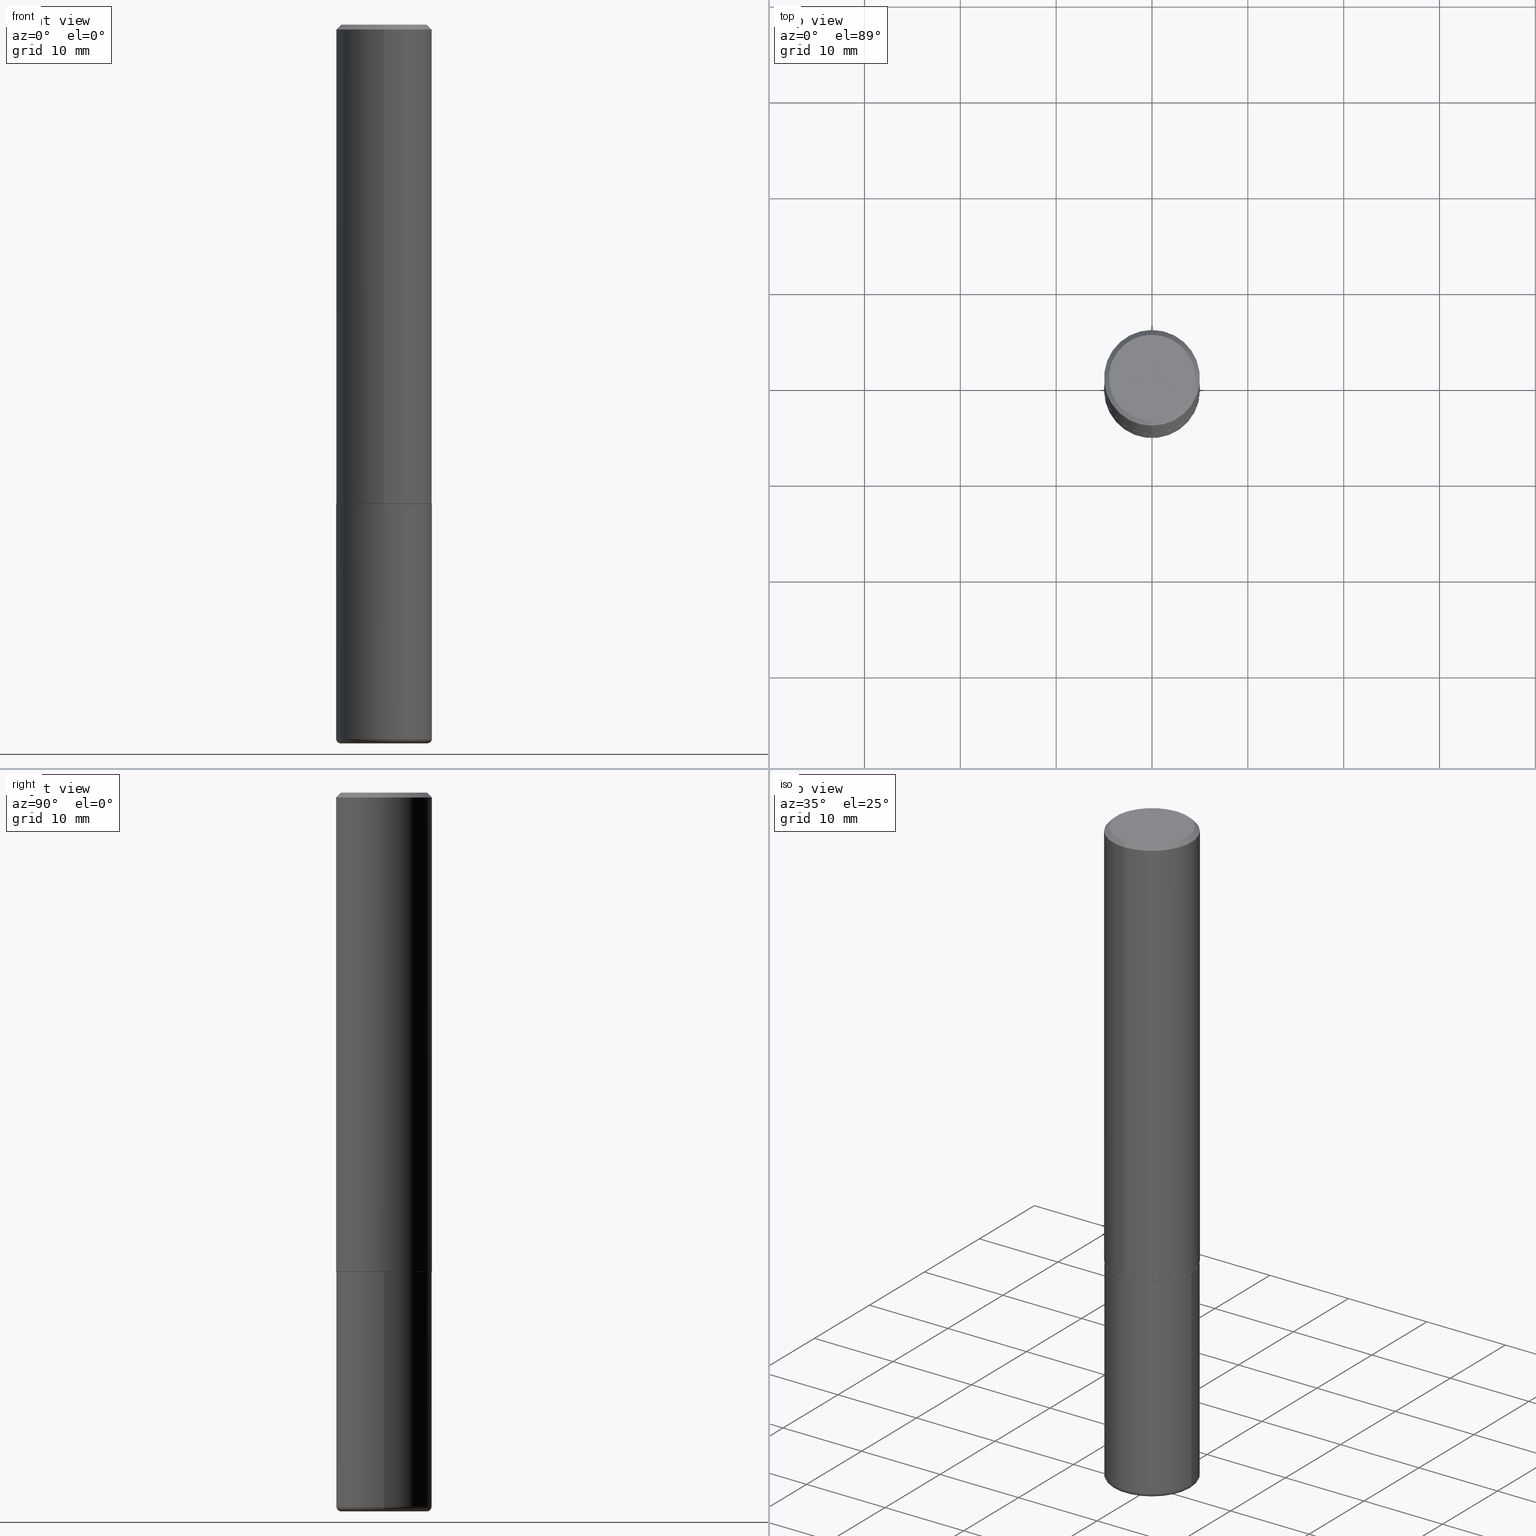
[diagram: canonical four-view strip — front | top / right | iso, engineering-drawing reading convention]
A machine part, canonical four-view strip (front | top / right | iso — engineering-drawing reading convention). The complete STEP part file that produces these views, byte-faithful:
ISO-10303-21;
HEADER;
FILE_DESCRIPTION (( 'STEP AP203' ),
    '1' );
FILE_NAME ('74401.STEP',
    '2024-03-06T15:11:22',
    ( '' ),
    ( '' ),
    'SwSTEP 2.0',
    'SolidWorks 2023',
    '' );
FILE_SCHEMA (( 'CONFIG_CONTROL_DESIGN' ));
ENDSEC;

DATA;
#1 = CALENDAR_DATE ( 2024, 6, 3 ) ;
#2 = EDGE_CURVE ( 'NONE', #213, #202, #205, .T. ) ;
#3 = DATE_AND_TIME ( #1, #21 ) ;
#4 = DATE_TIME_ROLE ( 'creation_date' ) ;
#5 = ORIENTED_EDGE ( 'NONE', *, *, #83, .F. ) ;
#6 = LOCAL_TIME ( 10, 11, 22.00000000000000000, #161 ) ;
#7 = PERSON_AND_ORGANIZATION ( #372, #323 ) ;
#8 = ORIENTED_EDGE ( 'NONE', *, *, #48, .T. ) ;
#9 = ORIENTED_EDGE ( 'NONE', *, *, #78, .T. ) ;
#10 = EDGE_LOOP ( 'NONE', ( #19, #9, #71, #87 ) ) ;
#11 = CARTESIAN_POINT ( 'NONE',  ( -1.281884050883609900E-15, -0.1768499999999998407, 8.395324101811677409E-16 ) ) ;
#12 = AXIS2_PLACEMENT_3D ( 'NONE', #308, #144, #398 ) ;
#13 = DIRECTION ( 'NONE',  ( 2.438088387897960049E-29, -3.491481338843145188E-15, -1.000000000000000000 ) ) ;
#14 = ORIENTED_EDGE ( 'NONE', *, *, #367, .T. ) ;
#15 = EDGE_CURVE ( 'NONE', #145, #41, #240, .T. ) ;
#16 = EDGE_CURVE ( 'NONE', #73, #336, #42, .T. ) ;
#17 = CARTESIAN_POINT ( 'NONE',  ( 4.813511714092851266E-29, -6.873544717340677315E-15, -1.968499999999999694 ) ) ;
#18 = DIRECTION ( 'NONE',  ( -6.982962677686265922E-15, -1.000000000000000000, 4.163344669033670112E-15 ) ) ;
#19 = ORIENTED_EDGE ( 'NONE', *, *, #272, .T. ) ;
#20 = VECTOR ( 'NONE', #337, 39.37007874015748143 ) ;
#21 = LOCAL_TIME ( 10, 11, 22.00000000000000000, #302 ) ;
#22 = DIRECTION ( 'NONE',  ( 1.000000000000000000, -6.982962677686269866E-15, 0.000000000000000000 ) ) ;
#23 = ADVANCED_FACE ( 'NONE', ( #51 ), #267, .T. ) ;
#24 = DIRECTION ( 'NONE',  ( -6.982962677686265922E-15, -1.000000000000000000, 4.163344669033670112E-15 ) ) ;
#25 = DIRECTION ( 'NONE',  ( -2.445468806185136597E-29, 3.491481338843145583E-15, 1.000000000000000000 ) ) ;
#26 = CIRCLE ( 'NONE', #191, 0.1968499999999999694 ) ;
#27 = CC_DESIGN_APPROVAL ( #108, ( #246 ) ) ;
#28 = FACE_OUTER_BOUND ( 'NONE', #281, .T. ) ;
#29 = ADVANCED_FACE ( 'NONE', ( #181 ), #282, .F. ) ;
#30 = CARTESIAN_POINT ( 'NONE',  ( 4.811066445251554069E-29, -6.870052949640732965E-15, -1.967499999999999805 ) ) ;
#31 = ORIENTED_EDGE ( 'NONE', *, *, #250, .T. ) ;
#32 = PLANE ( 'NONE',  #341 ) ;
#33 = CALENDAR_DATE ( 2024, 6, 3 ) ;
#34 = CC_DESIGN_PERSON_AND_ORGANIZATION_ASSIGNMENT ( #296, #263, ( #400 ) ) ;
#35 = DIRECTION ( 'NONE',  ( 0.000000000000000000, 0.000000000000000000, 1.000000000000000000 ) ) ;
#36 = APPROVAL_ROLE ( '' ) ;
#37 = ORIENTED_EDGE ( 'NONE', *, *, #216, .T. ) ;
#38 = VERTEX_POINT ( 'NONE', #409 ) ;
#39 = CIRCLE ( 'NONE', #105, 0.1968500000000002470 ) ;
#40 = LOCAL_TIME ( 10, 11, 22.00000000000000000, #131 ) ;
#41 = VERTEX_POINT ( 'NONE', #223 ) ;
#42 = LINE ( 'NONE', #171, #119 ) ;
#43 = CARTESIAN_POINT ( 'NONE',  ( 4.813905344975440714E-29, -6.872981015512730918E-15, -1.968499999999999694 ) ) ;
#44 = MANIFOLD_SOLID_BREP ( 'Body-Move/Copy2[1]', #358 ) ;
#45 = ORIENTED_EDGE ( 'NONE', *, *, #53, .F. ) ;
#46 = FACE_OUTER_BOUND ( 'NONE', #262, .T. ) ;
#47 = AXIS2_PLACEMENT_3D ( 'NONE', #406, #321, #125 ) ;
#48 = EDGE_CURVE ( 'NONE', #405, #213, #348, .T. ) ;
#49 = TOROIDAL_SURFACE ( 'NONE', #403, 0.1771500000000000019, 0.01969999999999987733 ) ;
#50 = DIRECTION ( 'NONE',  ( -2.445468806185136877E-29, 3.491481338843145188E-15, 1.000000000000000000 ) ) ;
#51 = FACE_OUTER_BOUND ( 'NONE', #160, .T. ) ;
#52 = DIRECTION ( 'NONE',  ( 1.000000000000000000, -6.982962677686272233E-15, 0.000000000000000000 ) ) ;
#53 = EDGE_CURVE ( 'NONE', #73, #116, #245, .T. ) ;
#54 = DIRECTION ( 'NONE',  ( -2.445268841296851437E-29, 3.491767699944464940E-15, 1.000000000000000000 ) ) ;
#55 = ORIENTED_EDGE ( 'NONE', *, *, #351, .T. ) ;
#56 = VECTOR ( 'NONE', #244, 39.37007874015748143 ) ;
#57 = CARTESIAN_POINT ( 'NONE',  ( 4.813511714092851266E-29, -6.873544717340677315E-15, -1.968499999999999694 ) ) ;
#58 = CARTESIAN_POINT ( 'NONE',  ( -0.1968500000000000250, -7.158219089893024104E-15, -1.968499999999999694 ) ) ;
#59 = DIRECTION ( 'NONE',  ( -6.982962677686265922E-15, -1.000000000000000000, 3.491767699944464940E-15 ) ) ;
#60 = ADVANCED_FACE ( 'NONE', ( #146 ), #218, .T. ) ;
#61 = AXIS2_PLACEMENT_3D ( 'NONE', #117, #375, #148 ) ;
#62 = APPROVAL_PERSON_ORGANIZATION ( #136, #108, #76 ) ;
#63 = ADVANCED_FACE ( 'NONE', ( #46 ), #288, .T. ) ;
#64 = DIRECTION ( 'NONE',  ( -2.445468806185136597E-29, 3.491481338843145583E-15, 1.000000000000000000 ) ) ;
#65 = DIRECTION ( 'NONE',  ( -6.982962677686265922E-15, -1.000000000000000000, 3.491767699944464545E-15 ) ) ;
#66 = PERSON_AND_ORGANIZATION_ROLE ( 'creator' ) ;
#67 = CIRCLE ( 'NONE', #47, 0.1968500000000000250 ) ;
#68 =( NAMED_UNIT ( * ) SI_UNIT ( $, .STERADIAN. ) SOLID_ANGLE_UNIT ( ) );
#69 =( GEOMETRIC_REPRESENTATION_CONTEXT ( 3 ) GLOBAL_UNCERTAINTY_ASSIGNED_CONTEXT ( ( #204 ) ) GLOBAL_UNIT_ASSIGNED_CONTEXT ( ( #297, #387, #68 ) ) REPRESENTATION_CONTEXT ( 'NONE', 'WORKASPACE' ) );
#70 = DATE_AND_TIME ( #365, #40 ) ;
#71 = ORIENTED_EDGE ( 'NONE', *, *, #351, .F. ) ;
#72 = SECURITY_CLASSIFICATION_LEVEL ( 'unclassified' ) ;
#73 = VERTEX_POINT ( 'NONE', #11 ) ;
#74 = AXIS2_PLACEMENT_3D ( 'NONE', #43, #13, #369 ) ;
#75 = AXIS2_PLACEMENT_3D ( 'NONE', #252, #256, #286 ) ;
#76 = APPROVAL_ROLE ( '' ) ;
#77 = DIRECTION ( 'NONE',  ( -2.445468806185136597E-29, 3.491481338843145583E-15, 1.000000000000000000 ) ) ;
#78 = EDGE_CURVE ( 'NONE', #101, #393, #215, .T. ) ;
#79 = ORIENTED_EDGE ( 'NONE', *, *, #167, .T. ) ;
#80 = DIRECTION ( 'NONE',  ( -2.445468806185136597E-29, 3.491481338843145583E-15, 1.000000000000000000 ) ) ;
#81 = ORIENTED_EDGE ( 'NONE', *, *, #200, .T. ) ;
#82 = CARTESIAN_POINT ( 'NONE',  ( -5.428821863719041386E-45, 7.752188435212310874E-31, 2.220132924459896583E-16 ) ) ;
#83 = EDGE_CURVE ( 'NONE', #145, #248, #221, .T. ) ;
#84 = DIRECTION ( 'NONE',  ( 1.000000000000000000, -6.982962677686266711E-15, 4.876176775795935793E-29 ) ) ;
#85 = CARTESIAN_POINT ( 'NONE',  ( 7.172804555421624566E-29, -1.024086391496083050E-14, -2.933100000000000041 ) ) ;
#86 = AXIS2_PLACEMENT_3D ( 'NONE', #377, #346, #189 ) ;
#87 = ORIENTED_EDGE ( 'NONE', *, *, #250, .F. ) ;
#88 = DIRECTION ( 'NONE',  ( -2.445268841296851437E-29, 3.491767699944464545E-15, 1.000000000000000000 ) ) ;
#89 = EDGE_LOOP ( 'NONE', ( #5, #275 ) ) ;
#90 = CARTESIAN_POINT ( 'NONE',  ( 4.813511714092851266E-29, -6.873544717340677315E-15, -1.968499999999999694 ) ) ;
#91 = FACE_OUTER_BOUND ( 'NONE', #151, .T. ) ;
#92 = VECTOR ( 'NONE', #251, 39.37007874015748854 ) ;
#93 = FACE_OUTER_BOUND ( 'NONE', #89, .T. ) ;
#94 = DIRECTION ( 'NONE',  ( 2.438088387897960049E-29, -3.491481338843145188E-15, -1.000000000000000000 ) ) ;
#95 = ADVANCED_FACE ( 'NONE', ( #399 ), #276, .F. ) ;
#96 = CARTESIAN_POINT ( 'NONE',  ( 7.220980290903470182E-29, -1.030964609733603853E-14, -2.952799999999999869 ) ) ;
#97 = AXIS2_PLACEMENT_3D ( 'NONE', #17, #88, #143 ) ;
#98 = TOROIDAL_SURFACE ( 'NONE', #226, 0.1771500000000000019, 0.01969999999999987733 ) ;
#99 = CARTESIAN_POINT ( 'NONE',  ( -5.428821863719041386E-45, 7.752188435212310874E-31, 2.220132924459896583E-16 ) ) ;
#100 = CC_DESIGN_PERSON_AND_ORGANIZATION_ASSIGNMENT ( #197, #330, ( #246 ) ) ;
#101 = VERTEX_POINT ( 'NONE', #370 ) ;
#102 = SHAPE_DEFINITION_REPRESENTATION ( #255, #295 ) ;
#103 = PERSON_AND_ORGANIZATION ( #372, #323 ) ;
#104 = DATE_AND_TIME ( #236, #6 ) ;
#105 = AXIS2_PLACEMENT_3D ( 'NONE', #179, #174, #18 ) ;
#106 = ORIENTED_EDGE ( 'NONE', *, *, #407, .T. ) ;
#107 = PERSON_AND_ORGANIZATION_ROLE ( 'design_owner' ) ;
#108 = APPROVAL ( #388, 'UNSPECIFIED' ) ;
#109 = DIRECTION ( 'NONE',  ( 1.000000000000000000, -6.982962677686266711E-15, 0.000000000000000000 ) ) ;
#110 = ORIENTED_EDGE ( 'NONE', *, *, #48, .F. ) ;
#111 = CARTESIAN_POINT ( 'NONE',  ( -1.367613240424807079E-15, -0.1958500000000068797, -1.968499999999999028 ) ) ;
#112 = EDGE_LOOP ( 'NONE', ( #303, #37, #31, #114 ) ) ;
#113 = CARTESIAN_POINT ( 'NONE',  ( -0.1968499999999999694, 1.398703375343756999E-15, -9.682923725166782276E-30 ) ) ;
#114 = ORIENTED_EDGE ( 'NONE', *, *, #277, .F. ) ;
#115 = FACE_OUTER_BOUND ( 'NONE', #362, .T. ) ;
#116 = VERTEX_POINT ( 'NONE', #249 ) ;
#117 = CARTESIAN_POINT ( 'NONE',  ( 4.813511714092851266E-29, -6.873544717340677315E-15, -1.968499999999999694 ) ) ;
#118 = DIRECTION ( 'NONE',  ( -2.445468806185136597E-29, 3.491481338843145583E-15, 1.000000000000000000 ) ) ;
#119 = VECTOR ( 'NONE', #311, 39.37007874015748854 ) ;
#120 = CC_DESIGN_APPROVAL ( #332, ( #260 ) ) ;
#121 = CARTESIAN_POINT ( 'NONE',  ( 1.395150661665005404E-15, 0.1958499999999931407, -1.968500000000000583 ) ) ;
#122 = CARTESIAN_POINT ( 'NONE',  ( 0.1968499999999999694, -1.374596203102541411E-15, 9.598753983154298056E-30 ) ) ;
#123 = LINE ( 'NONE', #225, #92 ) ;
#124 = EDGE_CURVE ( 'NONE', #248, #145, #156, .T. ) ;
#125 = DIRECTION ( 'NONE',  ( 1.000000000000000000, -6.982962677686267499E-15, 0.000000000000000000 ) ) ;
#126 = DIRECTION ( 'NONE',  ( -2.445468806185136597E-29, 3.491481338843145583E-15, 1.000000000000000000 ) ) ;
#127 = CARTESIAN_POINT ( 'NONE',  ( -1.350489030861325626E-15, -0.1968500000000001082, -0.01999999999999935510 ) ) ;
#128 = PERSON_AND_ORGANIZATION ( #372, #323 ) ;
#129 = ORIENTED_EDGE ( 'NONE', *, *, #187, .F. ) ;
#130 = APPROVAL_STATUS ( 'not_yet_approved' ) ;
#131 = COORDINATED_UNIVERSAL_TIME_OFFSET ( 5, 0, .BEHIND. ) ;
#132 = ORIENTED_EDGE ( 'NONE', *, *, #367, .F. ) ;
#133 = AXIS2_PLACEMENT_3D ( 'NONE', #340, #118, #52 ) ;
#134 = CC_DESIGN_DATE_AND_TIME_ASSIGNMENT ( #3, #4, ( #400 ) ) ;
#135 = CIRCLE ( 'NONE', #254, 0.1968500000000000527 ) ;
#136 = PERSON_AND_ORGANIZATION ( #372, #323 ) ;
#137 = ORIENTED_EDGE ( 'NONE', *, *, #2, .T. ) ;
#138 = DIRECTION ( 'NONE',  ( 1.000000000000000000, -6.982962677686272233E-15, 0.000000000000000000 ) ) ;
#139 = ORIENTED_EDGE ( 'NONE', *, *, #216, .F. ) ;
#140 = CARTESIAN_POINT ( 'NONE',  ( 0.1771500000000000019, -1.147789575331295131E-14, -2.933100000000000041 ) ) ;
#141 = ADVANCED_FACE ( 'NONE', ( #401 ), #394, .T. ) ;
#142 = AXIS2_PLACEMENT_3D ( 'NONE', #149, #284, #404 ) ;
#143 = DIRECTION ( 'NONE',  ( -6.982962677686265922E-15, -1.000000000000000000, 4.184602492209747448E-15 ) ) ;
#144 = DIRECTION ( 'NONE',  ( -2.445268841296851437E-29, 3.491767699944464545E-15, 1.000000000000000000 ) ) ;
#145 = VERTEX_POINT ( 'NONE', #111 ) ;
#146 = FACE_OUTER_BOUND ( 'NONE', #112, .T. ) ;
#147 = DIMENSIONAL_EXPONENTS ( 1.000000000000000000, 0.000000000000000000, 0.000000000000000000, 0.000000000000000000, 0.000000000000000000, 0.000000000000000000, 0.000000000000000000 ) ;
#148 = DIRECTION ( 'NONE',  ( -6.982962677686265922E-15, -1.000000000000000000, 4.184602492209747448E-15 ) ) ;
#149 = CARTESIAN_POINT ( 'NONE',  ( 4.890537682593712927E-31, -6.983535399888942699E-17, -0.02000000000000004205 ) ) ;
#150 = CC_DESIGN_SECURITY_CLASSIFICATION ( #246, ( #260 ) ) ;
#151 = EDGE_LOOP ( 'NONE', ( #79, #210, #195, #305 ) ) ;
#152 = DIRECTION ( 'NONE',  ( 5.024295867788490741E-15, 0.7071067811866103003, 0.7071067811864847341 ) ) ;
#153 = CARTESIAN_POINT ( 'NONE',  ( 7.172804555421624566E-29, -1.024086391496083050E-14, -2.933100000000000041 ) ) ;
#154 = EDGE_CURVE ( 'NONE', #41, #336, #217, .T. ) ;
#155 = DIRECTION ( 'NONE',  ( -6.982962677686265133E-15, -1.000000000000000000, 3.491137977679279029E-15 ) ) ;
#156 = CIRCLE ( 'NONE', #12, 0.1958499999999999963 ) ;
#157 = CIRCLE ( 'NONE', #206, 0.01969999999999989468 ) ;
#158 = DIRECTION ( 'NONE',  ( 1.000000000000000000, -6.982962677686269866E-15, 0.000000000000000000 ) ) ;
#159 = ORIENTED_EDGE ( 'NONE', *, *, #389, .T. ) ;
#160 = EDGE_LOOP ( 'NONE', ( #166, #309, #271, #132 ) ) ;
#161 = COORDINATED_UNIVERSAL_TIME_OFFSET ( 5, 0, .BEHIND. ) ;
#162 = DATE_AND_TIME ( #33, #396 ) ;
#163 = ORIENTED_EDGE ( 'NONE', *, *, #15, .F. ) ;
#164 = APPLICATION_PROTOCOL_DEFINITION ( 'international standard', 'config_control_design', 1994, #188 ) ;
#165 = PERSON_AND_ORGANIZATION ( #372, #323 ) ;
#166 = ORIENTED_EDGE ( 'NONE', *, *, #229, .F. ) ;
#167 = EDGE_CURVE ( 'NONE', #41, #38, #39, .T. ) ;
#168 = EDGE_LOOP ( 'NONE', ( #304, #8, #137, #139 ) ) ;
#169 = CIRCLE ( 'NONE', #133, 0.1771500000000000019 ) ;
#170 = ORIENTED_EDGE ( 'NONE', *, *, #2, .F. ) ;
#171 = CARTESIAN_POINT ( 'NONE',  ( -1.350489030861325626E-15, -0.1968500000000001082, -0.01999999999999935510 ) ) ;
#172 = ADVANCED_FACE ( 'NONE', ( #115 ), #314, .T. ) ;
#173 = ORIENTED_EDGE ( 'NONE', *, *, #200, .F. ) ;
#174 = DIRECTION ( 'NONE',  ( -2.445268841296851437E-29, 3.491767699944464545E-15, 1.000000000000000000 ) ) ;
#175 = ORIENTED_EDGE ( 'NONE', *, *, #261, .T. ) ;
#176 = AXIS2_PLACEMENT_3D ( 'NONE', #264, #77, #138 ) ;
#177 = CIRCLE ( 'NONE', #75, 0.1968500000000000527 ) ;
#178 = CARTESIAN_POINT ( 'NONE',  ( 0.1968499999999999417, -1.161546011806337053E-14, -2.933100000000000041 ) ) ;
#179 = CARTESIAN_POINT ( 'NONE',  ( 4.811066445251554069E-29, -6.870052949640732965E-15, -1.967499999999999805 ) ) ;
#180 = CC_DESIGN_DATE_AND_TIME_ASSIGNMENT ( #162, #203, ( #246 ) ) ;
#181 = FACE_OUTER_BOUND ( 'NONE', #339, .T. ) ;
#182 = FACE_OUTER_BOUND ( 'NONE', #335, .T. ) ;
#183 = ORIENTED_EDGE ( 'NONE', *, *, #154, .T. ) ;
#184 = ORIENTED_EDGE ( 'NONE', *, *, #167, .F. ) ;
#185 = CARTESIAN_POINT ( 'NONE',  ( 0.000000000000000000, 0.000000000000000000, 0.000000000000000000 ) ) ;
#186 = CARTESIAN_POINT ( 'NONE',  ( -0.1771500000000000019, -8.982137458561812020E-15, -2.933100000000000041 ) ) ;
#187 = EDGE_CURVE ( 'NONE', #38, #313, #242, .T. ) ;
#188 = APPLICATION_CONTEXT ( 'configuration controlled 3d designs of mechanical parts and assemblies' ) ;
#189 = DIRECTION ( 'NONE',  ( 6.982962677686265922E-15, 1.000000000000000000, -3.491767699944464940E-15 ) ) ;
#190 = CARTESIAN_POINT ( 'NONE',  ( -0.1771500000000000019, -8.946540090277048352E-15, -2.952799999999999869 ) ) ;
#191 = AXIS2_PLACEMENT_3D ( 'NONE', #85, #310, #22 ) ;
#192 = APPROVAL_PERSON_ORGANIZATION ( #128, #307, #356 ) ;
#193 = DIRECTION ( 'NONE',  ( -1.000000000000000000, 7.105427357600965571E-15, 0.000000000000000000 ) ) ;
#194 = DIRECTION ( 'NONE',  ( -2.445468806185136877E-29, 3.491481338843145188E-15, 1.000000000000000000 ) ) ;
#195 = ORIENTED_EDGE ( 'NONE', *, *, #378, .F. ) ;
#196 = MECHANICAL_CONTEXT ( 'NONE', #188, 'mechanical' ) ;
#197 = PERSON_AND_ORGANIZATION ( #372, #323 ) ;
#198 = AXIS2_PLACEMENT_3D ( 'NONE', #349, #126, #158 ) ;
#199 = CARTESIAN_POINT ( 'NONE',  ( 0.000000000000000000, 0.000000000000000000, 0.000000000000000000 ) ) ;
#200 = EDGE_CURVE ( 'NONE', #213, #405, #169, .T. ) ;
#201 = ORIENTED_EDGE ( 'NONE', *, *, #407, .F. ) ;
#202 = VERTEX_POINT ( 'NONE', #178 ) ;
#203 = DATE_TIME_ROLE ( 'classification_date' ) ;
#204 = UNCERTAINTY_MEASURE_WITH_UNIT (LENGTH_MEASURE( 1.000000000000000082E-05 ), #297, 'distance_accuracy_value', 'NONE');
#205 = CIRCLE ( 'NONE', #301, 0.01969999999999989468 ) ;
#206 = AXIS2_PLACEMENT_3D ( 'NONE', #186, #408, #193 ) ;
#207 = VERTEX_POINT ( 'NONE', #373 ) ;
#208 = DIRECTION ( 'NONE',  ( -6.982962677686266711E-15, -1.000000000000000000, 3.491481338843145583E-15 ) ) ;
#209 = DIRECTION ( 'NONE',  ( -6.982962677686265922E-15, -1.000000000000000000, 3.491767699944464940E-15 ) ) ;
#210 = ORIENTED_EDGE ( 'NONE', *, *, #187, .T. ) ;
#211 = DESIGN_CONTEXT ( 'detailed design', #318, 'design' ) ;
#212 = CARTESIAN_POINT ( 'NONE',  ( 1.398703375343757985E-15, 0.1968500000000001360, -6.873544717340683232E-16 ) ) ;
#213 = VERTEX_POINT ( 'NONE', #247 ) ;
#214 = CIRCLE ( 'NONE', #391, 0.1768499999999998407 ) ;
#215 = LINE ( 'NONE', #113, #395 ) ;
#216 = EDGE_CURVE ( 'NONE', #101, #202, #26, .T. ) ;
#217 = LINE ( 'NONE', #278, #253 ) ;
#218 = CYLINDRICAL_SURFACE ( 'NONE', #322, 0.1968499999999999694 ) ;
#219 = PRODUCT_RELATED_PRODUCT_CATEGORY ( 'detail', '', ( #413 ) ) ;
#220 = CARTESIAN_POINT ( 'NONE',  ( 0.000000000000000000, 0.000000000000000000, 0.000000000000000000 ) ) ;
#221 = CIRCLE ( 'NONE', #97, 0.1958499999999999963 ) ;
#222 = FACE_OUTER_BOUND ( 'NONE', #168, .T. ) ;
#223 = CARTESIAN_POINT ( 'NONE',  ( -1.374596203102495065E-15, -0.1968500000000071026, -1.967499999999998916 ) ) ;
#224 = DIRECTION ( 'NONE',  ( -2.445268841296851437E-29, 3.491767699944464545E-15, 1.000000000000000000 ) ) ;
#225 = CARTESIAN_POINT ( 'NONE',  ( 1.374596203102542200E-15, 0.1968499999999999694, -0.02000000000000072900 ) ) ;
#226 = AXIS2_PLACEMENT_3D ( 'NONE', #153, #25, #325 ) ;
#227 = DIRECTION ( 'NONE',  ( -2.445268841296851437E-29, 3.491767699944464545E-15, 1.000000000000000000 ) ) ;
#228 = APPROVAL_STATUS ( 'not_yet_approved' ) ;
#229 = EDGE_CURVE ( 'NONE', #248, #38, #376, .T. ) ;
#230 = CIRCLE ( 'NONE', #198, 0.1968499999999999694 ) ;
#231 = CIRCLE ( 'NONE', #274, 0.1968500000000002470 ) ;
#232 = ORIENTED_EDGE ( 'NONE', *, *, #320, .T. ) ;
#233 = APPLICATION_PROTOCOL_DEFINITION ( 'international standard', 'config_control_design', 1994, #318 ) ;
#234 = COORDINATED_UNIVERSAL_TIME_OFFSET ( 5, 0, .BEHIND. ) ;
#235 = ORIENTED_EDGE ( 'NONE', *, *, #229, .T. ) ;
#236 = CALENDAR_DATE ( 2024, 6, 3 ) ;
#237 = ORIENTED_EDGE ( 'NONE', *, *, #277, .T. ) ;
#238 = PERSON_AND_ORGANIZATION_ROLE ( 'design_supplier' ) ;
#239 = ORIENTED_EDGE ( 'NONE', *, *, #272, .F. ) ;
#240 = LINE ( 'NONE', #368, #20 ) ;
#241 = DIRECTION ( 'NONE',  ( -2.445268841296851437E-29, 3.491767699944464545E-15, 1.000000000000000000 ) ) ;
#242 = LINE ( 'NONE', #212, #56 ) ;
#243 = ADVANCED_FACE ( 'NONE', ( #182 ), #329, .T. ) ;
#244 = DIRECTION ( 'NONE',  ( -2.445268841296851437E-29, 3.491767699944464940E-15, 1.000000000000000000 ) ) ;
#245 = CIRCLE ( 'NONE', #300, 0.1768499999999998407 ) ;
#246 = SECURITY_CLASSIFICATION ( '', '', #72 ) ;
#247 = CARTESIAN_POINT ( 'NONE',  ( 0.1771500000000000019, -1.154667793568816250E-14, -2.952799999999999869 ) ) ;
#248 = VERTEX_POINT ( 'NONE', #121 ) ;
#249 = CARTESIAN_POINT ( 'NONE',  ( 1.304766576325678705E-15, 0.1768499999999998407, -3.955058252891884244E-16 ) ) ;
#250 = EDGE_CURVE ( 'NONE', #202, #207, #327, .T. ) ;
#251 = DIRECTION ( 'NONE',  ( 4.937700262164538576E-15, 0.7071067811865437980, -0.7071067811865511255 ) ) ;
#252 = CARTESIAN_POINT ( 'NONE',  ( 4.890537682593712927E-31, -6.983535399888942699E-17, -0.02000000000000004205 ) ) ;
#253 = VECTOR ( 'NONE', #54, 39.37007874015748143 ) ;
#254 = AXIS2_PLACEMENT_3D ( 'NONE', #350, #259, #155 ) ;
#255 = PRODUCT_DEFINITION_SHAPE ( 'NONE', 'NONE',  #400 ) ;
#256 = DIRECTION ( 'NONE',  ( -2.445268841296851437E-29, 3.491767699944464545E-15, 1.000000000000000000 ) ) ;
#257 = DIRECTION ( 'NONE',  ( -2.445268841296850876E-29, 3.491767699944464940E-15, 1.000000000000000000 ) ) ;
#258 = CC_DESIGN_PERSON_AND_ORGANIZATION_ASSIGNMENT ( #165, #238, ( #260 ) ) ;
#259 = DIRECTION ( 'NONE',  ( -2.445268841296851437E-29, 3.491767699944464545E-15, 1.000000000000000000 ) ) ;
#260 = PRODUCT_DEFINITION_FORMATION_WITH_SPECIFIED_SOURCE ( 'ANY', '', #413, .NOT_KNOWN. ) ;
#261 = EDGE_CURVE ( 'NONE', #116, #313, #123, .T. ) ;
#262 = EDGE_LOOP ( 'NONE', ( #397, #235, #184, #163 ) ) ;
#263 = PERSON_AND_ORGANIZATION_ROLE ( 'creator' ) ;
#264 = CARTESIAN_POINT ( 'NONE',  ( 7.220980290903470182E-29, -1.030964609733603853E-14, -2.952799999999999869 ) ) ;
#265 = DIRECTION ( 'NONE',  ( 1.000000000000000000, 0.000000000000000000, 0.000000000000000000 ) ) ;
#266 = ORIENTED_EDGE ( 'NONE', *, *, #53, .T. ) ;
#267 = CONICAL_SURFACE ( 'NONE', #61, 0.1958499999999999963, 0.7853981633975336552 ) ;
#268 = COORDINATED_UNIVERSAL_TIME_OFFSET ( 5, 0, .BEHIND. ) ;
#269 = EDGE_LOOP ( 'NONE', ( #129, #14, #183, #299 ) ) ;
#270 = ORIENTED_EDGE ( 'NONE', *, *, #378, .T. ) ;
#271 = ORIENTED_EDGE ( 'NONE', *, *, #15, .T. ) ;
#272 = EDGE_CURVE ( 'NONE', #202, #101, #230, .T. ) ;
#273 = VECTOR ( 'NONE', #152, 39.37007874015748143 ) ;
#274 = AXIS2_PLACEMENT_3D ( 'NONE', #30, #291, #24 ) ;
#275 = ORIENTED_EDGE ( 'NONE', *, *, #124, .F. ) ;
#276 = PLANE ( 'NONE',  #74 ) ;
#277 = EDGE_CURVE ( 'NONE', #393, #207, #67, .T. ) ;
#278 = CARTESIAN_POINT ( 'NONE',  ( -1.374596203102542397E-15, -0.1968500000000001360, 6.873544717340683232E-16 ) ) ;
#279 = ORIENTED_EDGE ( 'NONE', *, *, #16, .T. ) ;
#280 = DIRECTION ( 'NONE',  ( -6.982962677686265922E-15, -1.000000000000000000, 4.184602492209747448E-15 ) ) ;
#281 = EDGE_LOOP ( 'NONE', ( #81, #232, #239, #170 ) ) ;
#282 = PLANE ( 'NONE',  #86 ) ;
#283 = AXIS2_PLACEMENT_3D ( 'NONE', #220, #224, #65 ) ;
#284 = DIRECTION ( 'NONE',  ( 2.445268841296851437E-29, -3.491767699944464545E-15, -1.000000000000000000 ) ) ;
#285 = CARTESIAN_POINT ( 'NONE',  ( 7.172804555421624566E-29, -1.024086391496083050E-14, -2.933100000000000041 ) ) ;
#286 = DIRECTION ( 'NONE',  ( -6.982962677686265133E-15, -1.000000000000000000, 3.491137977679279029E-15 ) ) ;
#287 = DIRECTION ( 'NONE',  ( -2.445268841296851437E-29, 3.491767699944464545E-15, 1.000000000000000000 ) ) ;
#288 = CONICAL_SURFACE ( 'NONE', #410, 0.1958499999999999963, 0.7853981633975336552 ) ;
#289 = ADVANCED_FACE ( 'NONE', ( #93 ), #32, .F. ) ;
#290 = DIRECTION ( 'NONE',  ( 1.000000000000000000, -6.982962677686267499E-15, 0.000000000000000000 ) ) ;
#291 = DIRECTION ( 'NONE',  ( -2.445268841296851437E-29, 3.491767699944464545E-15, 1.000000000000000000 ) ) ;
#292 = EDGE_LOOP ( 'NONE', ( #173, #110 ) ) ;
#293 = DIRECTION ( 'NONE',  ( 1.000000000000000000, -6.982962677686271444E-15, 4.883557194083114022E-29 ) ) ;
#294 = ADVANCED_FACE ( 'NONE', ( #319 ), #385, .T. ) ;
#295 = ADVANCED_BREP_SHAPE_REPRESENTATION ( '74401', ( #44, #324, #374 ), #69 ) ;
#296 = PERSON_AND_ORGANIZATION ( #372, #323 ) ;
#297 =( CONVERSION_BASED_UNIT ( 'INCH', #328 ) LENGTH_UNIT ( ) NAMED_UNIT ( #147 ) );
#298 = APPROVAL_DATE_TIME ( #360, #332 ) ;
#299 = ORIENTED_EDGE ( 'NONE', *, *, #389, .F. ) ;
#300 = AXIS2_PLACEMENT_3D ( 'NONE', #82, #312, #209 ) ;
#301 = AXIS2_PLACEMENT_3D ( 'NONE', #140, #208, #109 ) ;
#302 = COORDINATED_UNIVERSAL_TIME_OFFSET ( 5, 0, .BEHIND. ) ;
#303 = ORIENTED_EDGE ( 'NONE', *, *, #78, .F. ) ;
#304 = ORIENTED_EDGE ( 'NONE', *, *, #320, .F. ) ;
#305 = ORIENTED_EDGE ( 'NONE', *, *, #154, .F. ) ;
#306 = CARTESIAN_POINT ( 'NONE',  ( 4.890537682593712927E-31, -6.983535399888942699E-17, -0.02000000000000004205 ) ) ;
#307 = APPROVAL ( #228, 'UNSPECIFIED' ) ;
#308 = CARTESIAN_POINT ( 'NONE',  ( 4.813511714092851266E-29, -6.873544717340677315E-15, -1.968499999999999694 ) ) ;
#309 = ORIENTED_EDGE ( 'NONE', *, *, #124, .T. ) ;
#310 = DIRECTION ( 'NONE',  ( -2.445468806185136597E-29, 3.491481338843145583E-15, 1.000000000000000000 ) ) ;
#311 = DIRECTION ( 'NONE',  ( -4.851104656540954809E-15, -0.7071067811865486830, -0.7071067811865462405 ) ) ;
#312 = DIRECTION ( 'NONE',  ( -2.445268841296851437E-29, 3.491767699944464545E-15, 1.000000000000000000 ) ) ;
#313 = VERTEX_POINT ( 'NONE', #383 ) ;
#314 = CONICAL_SURFACE ( 'NONE', #417, 0.1968500000000000527, 0.7853981633974466137 ) ;
#315 = CC_DESIGN_APPROVAL ( #307, ( #400 ) ) ;
#316 = DIRECTION ( 'NONE',  ( 6.982962677686265133E-15, 1.000000000000000000, -3.491137977679279029E-15 ) ) ;
#317 = CYLINDRICAL_SURFACE ( 'NONE', #283, 0.1968500000000001360 ) ;
#318 = APPLICATION_CONTEXT ( 'configuration controlled 3d designs of mechanical parts and assemblies' ) ;
#319 = FACE_OUTER_BOUND ( 'NONE', #292, .T. ) ;
#320 = EDGE_CURVE ( 'NONE', #405, #101, #157, .T. ) ;
#321 = DIRECTION ( 'NONE',  ( -2.445468806185136597E-29, 3.491481338843145583E-15, 1.000000000000000000 ) ) ;
#322 = AXIS2_PLACEMENT_3D ( 'NONE', #185, #338, #84 ) ;
#323 = ORGANIZATION ( 'UNSPECIFIED', 'UNSPECIFIED', '' ) ;
#324 = MANIFOLD_SOLID_BREP ( 'Body-Move/Copy2[2]', #353 ) ;
#325 = DIRECTION ( 'NONE',  ( 1.000000000000000000, -6.982962677686271444E-15, 4.883557194083114022E-29 ) ) ;
#326 = CC_DESIGN_PERSON_AND_ORGANIZATION_ASSIGNMENT ( #103, #107, ( #413 ) ) ;
#327 = LINE ( 'NONE', #122, #381 ) ;
#328 = LENGTH_MEASURE_WITH_UNIT ( LENGTH_MEASURE( 0.02539999999999999897 ), #418 );
#329 = CONICAL_SURFACE ( 'NONE', #142, 0.1968500000000000527, 0.7853981633974466137 ) ;
#330 = PERSON_AND_ORGANIZATION_ROLE ( 'classification_officer' ) ;
#331 = APPROVAL_DATE_TIME ( #70, #108 ) ;
#332 = APPROVAL ( #130, 'UNSPECIFIED' ) ;
#333 = AXIS2_PLACEMENT_3D ( 'NONE', #379, #80, #347 ) ;
#334 = AXIS2_PLACEMENT_3D ( 'NONE', #386, #287, #412 ) ;
#335 = EDGE_LOOP ( 'NONE', ( #364, #201, #175, #159 ) ) ;
#336 = VERTEX_POINT ( 'NONE', #127 ) ;
#337 = DIRECTION ( 'NONE',  ( -4.937700262164969294E-15, -0.7071067811866054154, 0.7071067811864896191 ) ) ;
#338 = DIRECTION ( 'NONE',  ( -2.445468806185136597E-29, 3.491481338843145583E-15, 1.000000000000000000 ) ) ;
#339 = EDGE_LOOP ( 'NONE', ( #106, #266 ) ) ;
#340 = CARTESIAN_POINT ( 'NONE',  ( 7.220980290903470182E-29, -1.030964609733603853E-14, -2.952799999999999869 ) ) ;
#341 = AXIS2_PLACEMENT_3D ( 'NONE', #57, #257, #380 ) ;
#342 = APPROVAL_PERSON_ORGANIZATION ( #7, #332, #36 ) ;
#343 = DIRECTION ( 'NONE',  ( 2.445268841296851437E-29, -3.491767699944464545E-15, -1.000000000000000000 ) ) ;
#344 = CARTESIAN_POINT ( 'NONE',  ( 1.391597947986204111E-15, 0.1958499999999931407, -1.968500000000000583 ) ) ;
#345 = ADVANCED_FACE ( 'NONE', ( #91 ), #317, .T. ) ;
#346 = DIRECTION ( 'NONE',  ( 2.445268841296850876E-29, -3.491767699944464940E-15, -1.000000000000000000 ) ) ;
#347 = DIRECTION ( 'NONE',  ( 1.000000000000000000, -6.982962677686266711E-15, 4.876176775795935793E-29 ) ) ;
#348 = CIRCLE ( 'NONE', #176, 0.1771500000000000019 ) ;
#349 = CARTESIAN_POINT ( 'NONE',  ( 7.172804555421624566E-29, -1.024086391496083050E-14, -2.933100000000000041 ) ) ;
#350 = CARTESIAN_POINT ( 'NONE',  ( 4.890537682593712927E-31, -6.983535399888942699E-17, -0.02000000000000004205 ) ) ;
#351 = EDGE_CURVE ( 'NONE', #207, #393, #366, .T. ) ;
#352 = CARTESIAN_POINT ( 'NONE',  ( 4.813905344975440714E-29, -6.872981015512730918E-15, -1.968499999999999694 ) ) ;
#353 = CLOSED_SHELL ( 'NONE', ( #63, #345, #172, #243, #392, #23, #289, #29 ) ) ;
#354 = DIRECTION ( 'NONE',  ( -1.000000000000000000, 6.982962677686265922E-15, -4.876176775795935793E-29 ) ) ;
#355 = LOCAL_TIME ( 10, 11, 22.00000000000000000, #234 ) ;
#356 = APPROVAL_ROLE ( '' ) ;
#357 = CALENDAR_DATE ( 2024, 6, 3 ) ;
#358 = CLOSED_SHELL ( 'NONE', ( #141, #415, #95, #60, #361, #294 ) ) ;
#359 = APPROVAL_DATE_TIME ( #104, #307 ) ;
#360 = DATE_AND_TIME ( #357, #355 ) ;
#361 = ADVANCED_FACE ( 'NONE', ( #222 ), #98, .T. ) ;
#362 = EDGE_LOOP ( 'NONE', ( #45, #279, #270, #390 ) ) ;
#363 = PERSON_AND_ORGANIZATION ( #372, #323 ) ;
#364 = ORIENTED_EDGE ( 'NONE', *, *, #16, .F. ) ;
#365 = CALENDAR_DATE ( 2024, 6, 3 ) ;
#366 = CIRCLE ( 'NONE', #411, 0.1968500000000000250 ) ;
#367 = EDGE_CURVE ( 'NONE', #38, #41, #231, .T. ) ;
#368 = CARTESIAN_POINT ( 'NONE',  ( -1.367613240424807079E-15, -0.1958500000000068797, -1.968499999999999028 ) ) ;
#369 = DIRECTION ( 'NONE',  ( -1.000000000000000000, 6.982962677686265922E-15, -4.876176775795935793E-29 ) ) ;
#370 = CARTESIAN_POINT ( 'NONE',  ( -0.1968499999999999417, -8.842160539617071922E-15, -2.933100000000000041 ) ) ;
#371 = EDGE_LOOP ( 'NONE', ( #55, #237 ) ) ;
#372 = PERSON ( 'UNSPECIFIED', 'UNSPECIFIED', 'UNSPECIFIED', ('UNSPECIFIED'), ('UNSPECIFIED'), ('UNSPECIFIED') ) ;
#373 = CARTESIAN_POINT ( 'NONE',  ( 0.1968500000000000250, -8.247577218615273316E-15, -1.968499999999999694 ) ) ;
#374 = AXIS2_PLACEMENT_3D ( 'NONE', #199, #35, #265 ) ;
#375 = DIRECTION ( 'NONE',  ( -2.445268841296851437E-29, 3.491767699944464545E-15, 1.000000000000000000 ) ) ;
#376 = LINE ( 'NONE', #344, #273 ) ;
#377 = CARTESIAN_POINT ( 'NONE',  ( 1.234936949548815012E-15, 0.1768499999999998407, -5.065124715121833152E-16 ) ) ;
#378 = EDGE_CURVE ( 'NONE', #336, #313, #177, .T. ) ;
#379 = CARTESIAN_POINT ( 'NONE',  ( 0.000000000000000000, 0.000000000000000000, 0.000000000000000000 ) ) ;
#380 = DIRECTION ( 'NONE',  ( -6.982962677686265922E-15, -1.000000000000000000, 3.491767699944464940E-15 ) ) ;
#381 = VECTOR ( 'NONE', #194, 39.37007874015748143 ) ;
#382 = CC_DESIGN_PERSON_AND_ORGANIZATION_ASSIGNMENT ( #363, #66, ( #260 ) ) ;
#383 = CARTESIAN_POINT ( 'NONE',  ( 1.374596203102542200E-15, 0.1968499999999999694, -0.02000000000000072900 ) ) ;
#384 = CYLINDRICAL_SURFACE ( 'NONE', #334, 0.1968500000000001360 ) ;
#385 = PLANE ( 'NONE',  #402 ) ;
#386 = CARTESIAN_POINT ( 'NONE',  ( 0.000000000000000000, 0.000000000000000000, 0.000000000000000000 ) ) ;
#387 =( NAMED_UNIT ( * ) PLANE_ANGLE_UNIT ( ) SI_UNIT ( $, .RADIAN. ) );
#388 = APPROVAL_STATUS ( 'not_yet_approved' ) ;
#389 = EDGE_CURVE ( 'NONE', #313, #336, #135, .T. ) ;
#390 = ORIENTED_EDGE ( 'NONE', *, *, #261, .F. ) ;
#391 = AXIS2_PLACEMENT_3D ( 'NONE', #99, #227, #59 ) ;
#392 = ADVANCED_FACE ( 'NONE', ( #416 ), #384, .T. ) ;
#393 = VERTEX_POINT ( 'NONE', #58 ) ;
#394 = CYLINDRICAL_SURFACE ( 'NONE', #333, 0.1968499999999999694 ) ;
#395 = VECTOR ( 'NONE', #50, 39.37007874015748143 ) ;
#396 = LOCAL_TIME ( 10, 11, 22.00000000000000000, #268 ) ;
#397 = ORIENTED_EDGE ( 'NONE', *, *, #83, .T. ) ;
#398 = DIRECTION ( 'NONE',  ( -6.982962677686265922E-15, -1.000000000000000000, 4.184602492209747448E-15 ) ) ;
#399 = FACE_OUTER_BOUND ( 'NONE', #371, .T. ) ;
#400 = PRODUCT_DEFINITION ( 'UNKNOWN', '', #260, #211 ) ;
#401 = FACE_OUTER_BOUND ( 'NONE', #10, .T. ) ;
#402 = AXIS2_PLACEMENT_3D ( 'NONE', #96, #94, #354 ) ;
#403 = AXIS2_PLACEMENT_3D ( 'NONE', #285, #414, #293 ) ;
#404 = DIRECTION ( 'NONE',  ( 6.982962677686265133E-15, 1.000000000000000000, -3.491137977679279029E-15 ) ) ;
#405 = VERTEX_POINT ( 'NONE', #190 ) ;
#406 = CARTESIAN_POINT ( 'NONE',  ( 4.813905344975440714E-29, -6.872981015512730918E-15, -1.968499999999999694 ) ) ;
#407 = EDGE_CURVE ( 'NONE', #116, #73, #214, .T. ) ;
#408 = DIRECTION ( 'NONE',  ( 7.105427357601001859E-15, 1.000000000000000000, -3.491481338843145583E-15 ) ) ;
#409 = CARTESIAN_POINT ( 'NONE',  ( 1.398703375343782440E-15, 0.1968499999999933914, -1.967500000000000471 ) ) ;
#410 = AXIS2_PLACEMENT_3D ( 'NONE', #90, #241, #280 ) ;
#411 = AXIS2_PLACEMENT_3D ( 'NONE', #352, #64, #290 ) ;
#412 = DIRECTION ( 'NONE',  ( -6.982962677686265922E-15, -1.000000000000000000, 3.491767699944464545E-15 ) ) ;
#413 = PRODUCT ( '74401', '74401', '', ( #196 ) ) ;
#414 = DIRECTION ( 'NONE',  ( -2.445468806185136597E-29, 3.491481338843145583E-15, 1.000000000000000000 ) ) ;
#415 = ADVANCED_FACE ( 'NONE', ( #28 ), #49, .T. ) ;
#416 = FACE_OUTER_BOUND ( 'NONE', #269, .T. ) ;
#417 = AXIS2_PLACEMENT_3D ( 'NONE', #306, #343, #316 ) ;
#418 =( LENGTH_UNIT ( ) NAMED_UNIT ( * ) SI_UNIT ( $, .METRE. ) );
ENDSEC;
END-ISO-10303-21;
